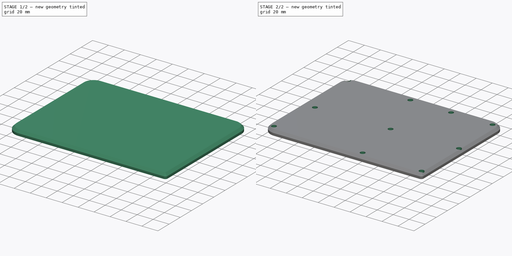
[diagram: build sequence overview — one tinted view per stage of 2, left to right]
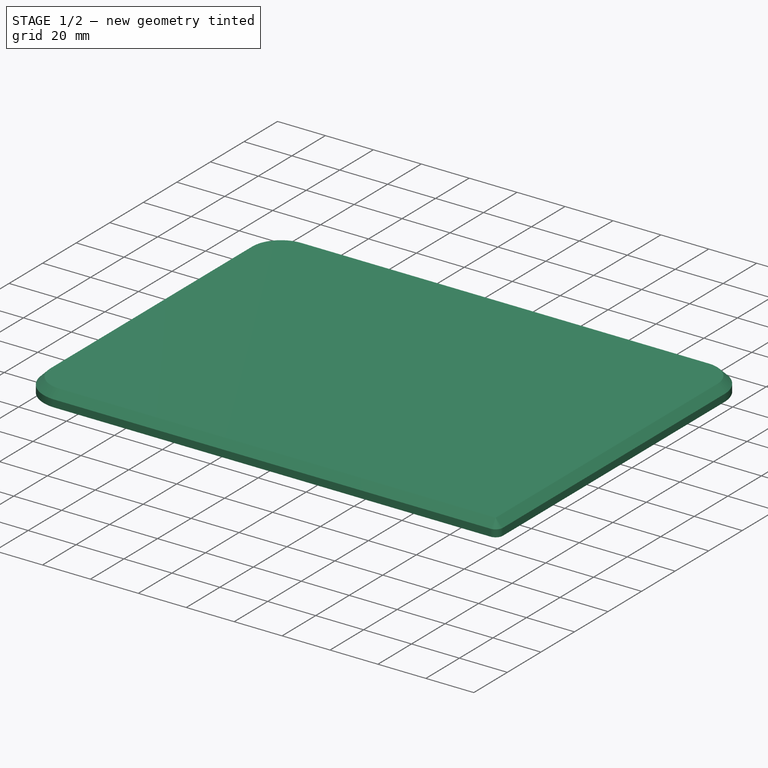
[diagram: stage 1 of 2 — iso view after this stage's code; geometry added in this stage tinted green]
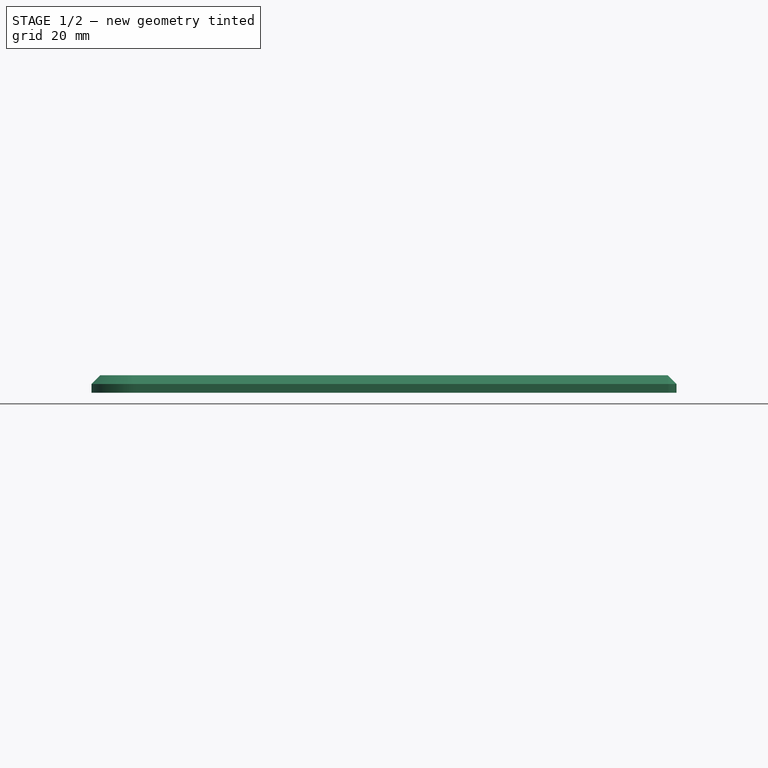
[diagram: stage 1 of 2 — front view after this stage's code; geometry added in this stage tinted green]
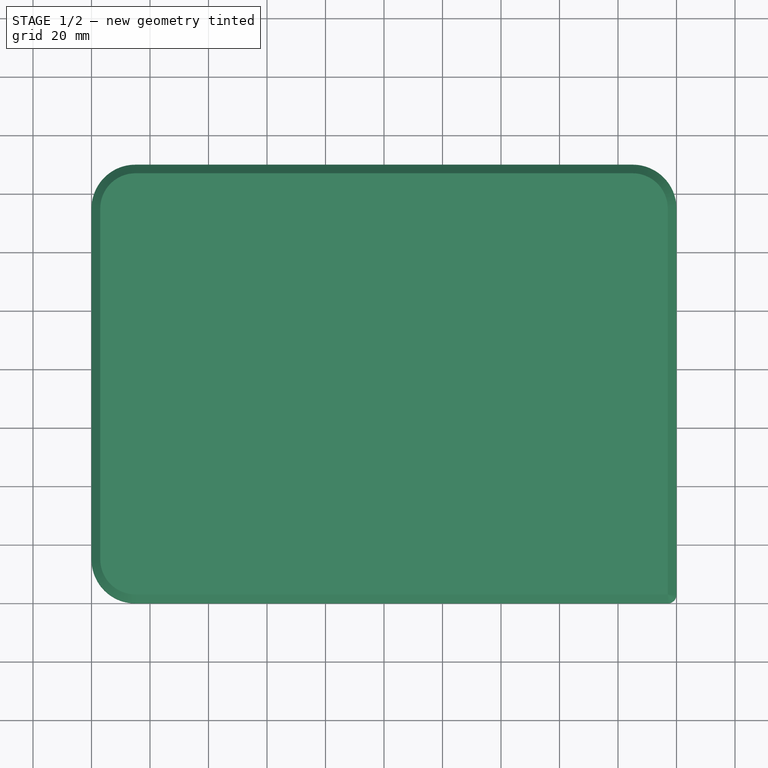
[diagram: stage 1 of 2 — top view after this stage's code; geometry added in this stage tinted green]
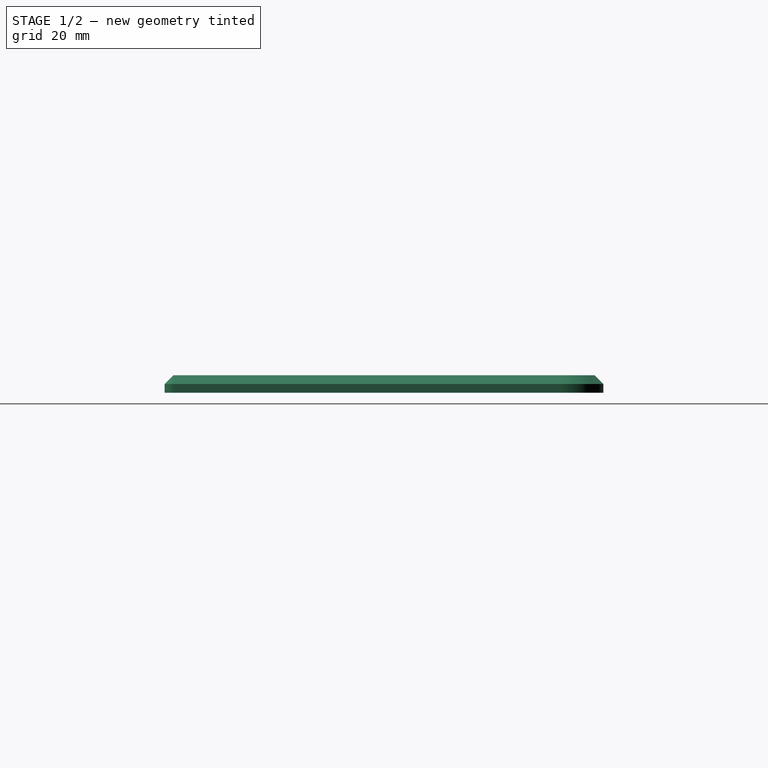
[diagram: stage 1 of 2 — right view after this stage's code; geometry added in this stage tinted green]
FCSTD DOCUMENT  (FreeCAD 0.19R23578 (Git))
Label: Side
License: All rights reserved
LicenseURL: http://en.wikipedia.org/wiki/All_rights_reserved
objects: Sketcher::SketchObject×2, PartDesign::Pad×1, PartDesign::Chamfer×1, PartDesign::Hole×1, PartDesign::Body×1, Part::Feature×1
note: 10 computed .brp shape members not serialized (recipe doc carries the construction recipe); baked Part::Feature solids carry a one-line shape summary decoded from their .brp

FEATURE [Sketcher::SketchObject] Sketch001
  MapMode = 5
  Support = -> [XY_Plane001]
  sketch-geometry (8):
    g0: LineSegment StartX=15 StartY=150 StartZ=0 EndX=185 EndY=150 EndZ=0
    g1: LineSegment StartX=200 StartY=135 StartZ=0 EndX=200 EndY=3 EndZ=0
    g2: LineSegment StartX=197 StartY=0 StartZ=0 EndX=15 EndY=0 EndZ=0
    g3: LineSegment StartX=6.75922e-11 StartY=15 StartZ=0 EndX=6.75922e-11 EndY=135 EndZ=0
    g4: ArcOfCircle CenterX=15 CenterY=135 CenterZ=0 NormalX=0 NormalY=0 NormalZ=1 AngleXU=0 Radius=15 StartAngle=1.5708 EndAngle=3.14159
    g5: ArcOfCircle CenterX=15 CenterY=15 CenterZ=0 NormalX=0 NormalY=0 NormalZ=1 AngleXU=0 Radius=15 StartAngle=3.14159 EndAngle=4.71239
    g6: ArcOfCircle CenterX=197 CenterY=3 CenterZ=0 NormalX=0 NormalY=0 NormalZ=1 AngleXU=0 Radius=3 StartAngle=4.71239 EndAngle=6.28319
    g7: ArcOfCircle CenterX=185 CenterY=135 CenterZ=0 NormalX=0 NormalY=0 NormalZ=1 AngleXU=0 Radius=15 StartAngle=-9e-16 EndAngle=1.5708
  constraints (20):
    c: Horizontal(g0)
    c: Horizontal(g2)
    c: Vertical(g1)
    c: Vertical(g3)
    c: Tangent(g0,g4) = 1.5708
    c: Tangent(g3,g4) = 1.5708
    c: Tangent(g3,g5) = 1.5708
    c: Tangent(g2,g5) = 1.5708
    c: Tangent(g2,g6) = 1.5708
    c: Tangent(g1,g6) = 1.5708
    c: Tangent(g1,g7) = 1.5708
    c: Tangent(g0,g7) = 1.5708
    c: PointOnObject(g3,g-2)
    c: Radius(g4) = 15
    c: Radius(g7) = 15
    c: Radius(g5) = 15
    c: Radius(g6) = 3
    c: DistanceY(g2,g0) = 150
    c: DistanceX(g3,g1) = 200
    c: PointOnObject(g2,g-1)
FEATURE [PartDesign::Pad] Pad
  Direction = (1,1,1)
  Length = 6
  Length2 = 100
  Profile = -> Sketch001
  Type = 0
FEATURE [PartDesign::Chamfer] Chamfer
  Angle = 45
  Base = -> Pad [Edge4]
  BaseFeature = -> Pad
  ChamferType = 0
  FlipDirection = false
  Size = 3
  Size2 = 1
  SupportTransform = false
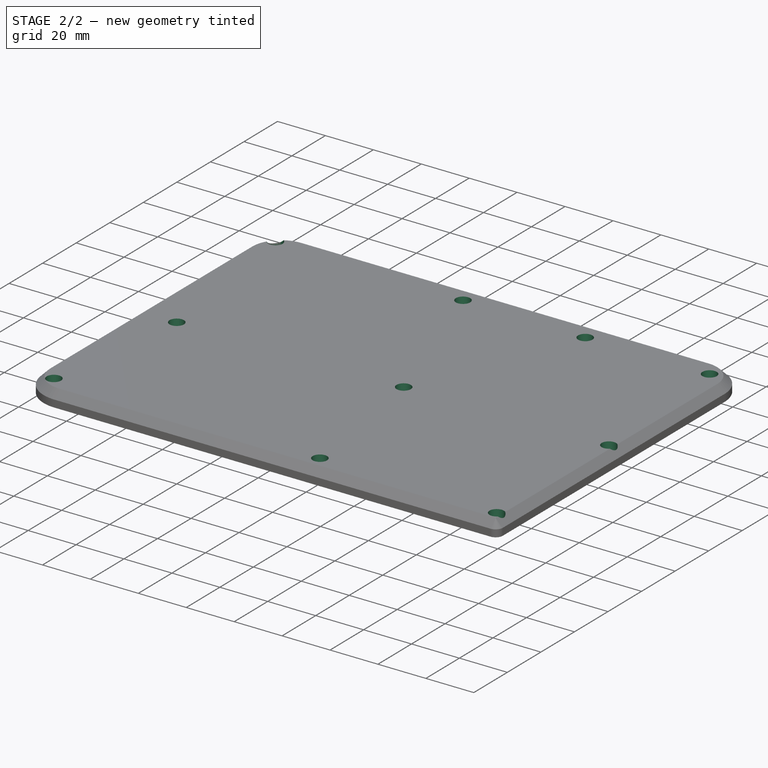
[diagram: stage 2 of 2 — iso view after this stage's code; geometry added in this stage tinted green]
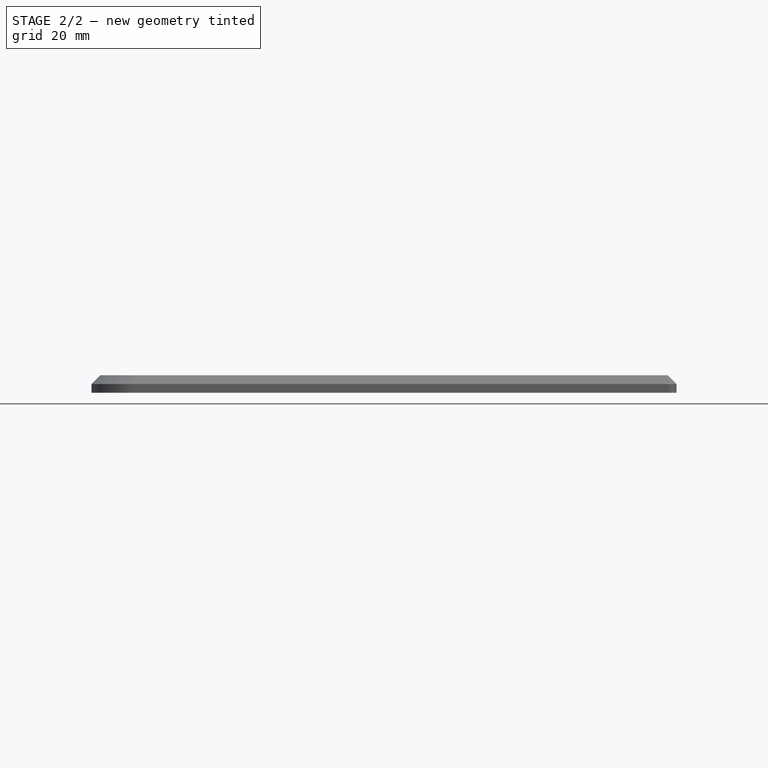
[diagram: stage 2 of 2 — front view after this stage's code; geometry added in this stage tinted green]
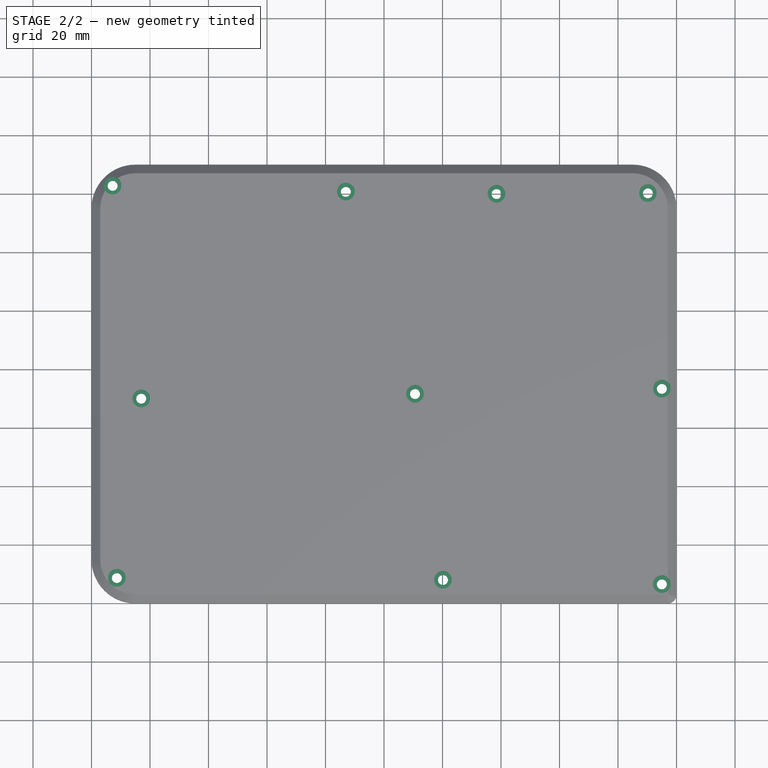
[diagram: stage 2 of 2 — top view after this stage's code; geometry added in this stage tinted green]
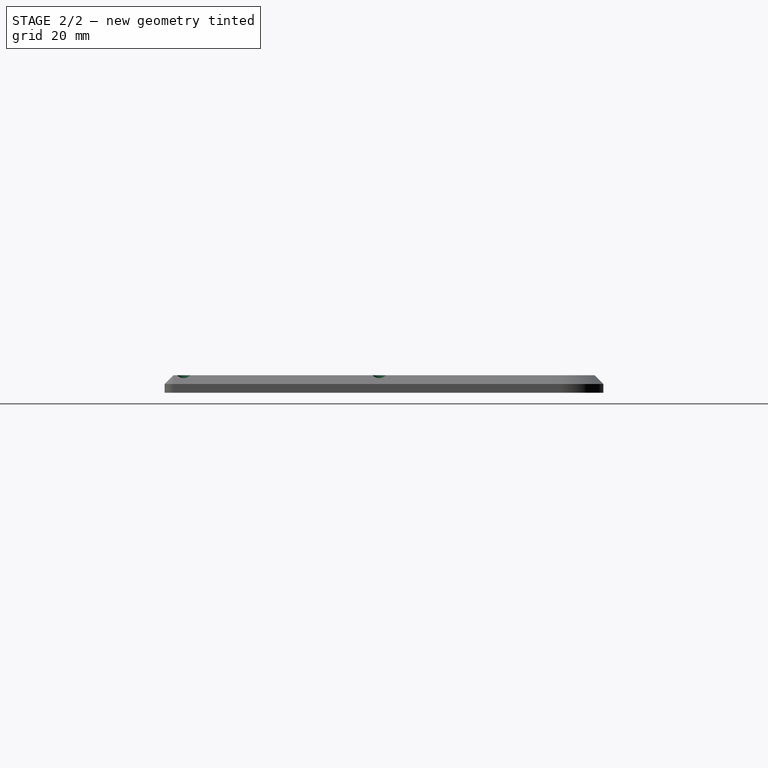
[diagram: stage 2 of 2 — right view after this stage's code; geometry added in this stage tinted green]
FEATURE [Sketcher::SketchObject] Sketch002
  ExternalGeometry = -> [Chamfer]
  MapMode = 5
  Placement = pos=(0,0,6) rot=(0,0,1;0rad)
  Support = -> [Chamfer]
  sketch-geometry (10):
    g0: Circle CenterX=8.6612 CenterY=8.6612 CenterZ=0 NormalX=0 NormalY=0 NormalZ=1 AngleXU=0 Radius=2
    g1: Circle CenterX=120.168 CenterY=8.0062 CenterZ=0 NormalX=0 NormalY=0 NormalZ=1 AngleXU=0 Radius=2
    g2: Circle CenterX=195 CenterY=6.5 CenterZ=0 NormalX=0 NormalY=0 NormalZ=1 AngleXU=0 Radius=2
    g3: Circle CenterX=195 CenterY=73.3647 CenterZ=0 NormalX=0 NormalY=0 NormalZ=1 AngleXU=0 Radius=2
    g4: Circle CenterX=17 CenterY=70 CenterZ=0 NormalX=0 NormalY=0 NormalZ=1 AngleXU=0 Radius=2
    g5: Circle CenterX=110.606 CenterY=71.5958 CenterZ=0 NormalX=0 NormalY=0 NormalZ=1 AngleXU=0 Radius=2
    g6: Circle CenterX=86.9545 CenterY=140.727 CenterZ=0 NormalX=0 NormalY=0 NormalZ=1 AngleXU=0 Radius=2
    g7: Circle CenterX=138.481 CenterY=139.988 CenterZ=0 NormalX=0 NormalY=0 NormalZ=1 AngleXU=0 Radius=2
    g8: Circle CenterX=190.229 CenterY=140.229 CenterZ=0 NormalX=0 NormalY=0 NormalZ=1 AngleXU=0 Radius=2
    g9: Circle CenterX=7.2218 CenterY=142.778 CenterZ=0 NormalX=0 NormalY=0 NormalZ=1 AngleXU=0 Radius=2
  constraints (30):
    c: Diameter(g9) = 4
    c: Equal(g9,g4)
    c: Equal(g9,g0)
    c: Equal(g9,g1)
    c: Equal(g9,g5)
    c: Equal(g9,g3)
    c: Equal(g9,g2)
    c: Equal(g9,g8)
    c: Equal(g9,g7)
    c: Equal(g9,g6)
    c: DistanceX(g-1,g0) = 8.6612
    c: DistanceY(g-1,g0) = 8.6612
    c: DistanceX(g-1,g1) = 120.168
    c: DistanceY(g-1,g1) = 8.0062
    c: DistanceX(g-1,g2) = 195
    c: DistanceY(g-1,g2) = 6.5
    c: DistanceX(g-1,g4) = 17
    c: DistanceY(g-1,g4) = 70
    c: DistanceX(g-1,g5) = 110.606
    c: DistanceY(g-1,g5) = 71.5958
    c: DistanceX(g-1,g3) = 195
    c: DistanceY(g-1,g3) = 73.3647
    c: DistanceX(g-1,g6) = 86.9545
    c: DistanceY(g-1,g6) = 140.727
    c: DistanceX(g-1,g7) = 138.481
    c: DistanceY(g-1,g7) = 139.988
    c: DistanceX(g-1,g8) = 190.229
    c: DistanceY(g-1,g8) = 140.229
    c: DistanceX(g-4,g9) = 7.2218
    c: DistanceY(g9,g-3) = 7.2218
FEATURE [PartDesign::Hole] Hole001
  BaseFeature = -> Chamfer
  Depth = 25
  DepthType = 1
  Diameter = 3.4
  DrillPoint = 1
  DrillPointAngle = 118
  HoleCutCountersinkAngle = 90
  HoleCutDepth = 3.4
  HoleCutDiameter = 6
  HoleCutType = 11
  ModelActualThread = false
  Profile = -> Sketch002
  Tapered = false
  TaperedAngle = 90
  ThreadAngle = 0
  ThreadClass = 0
  ThreadCutOffInner = 0
  ThreadCutOffOuter = 0
  ThreadDirection = 0
  ThreadFit = 0
  ThreadPitch = 0
  ThreadSize = 9
  ThreadType = 1
  Threaded = false
FEATURE [PartDesign::Body] Body001  label="Speaker_Side"
  Group = -> [Sketch001,Pad,Chamfer,Sketch002,Hole001]
  Origin = -> Origin001
  Tip = -> Hole001
FEATURE [Part::Feature] Part__Mirroring001  label="Speaker_Side (Mirror #1)001"
  shape: bbox 200 x 150 x 6 mm, 48 faces (baked)
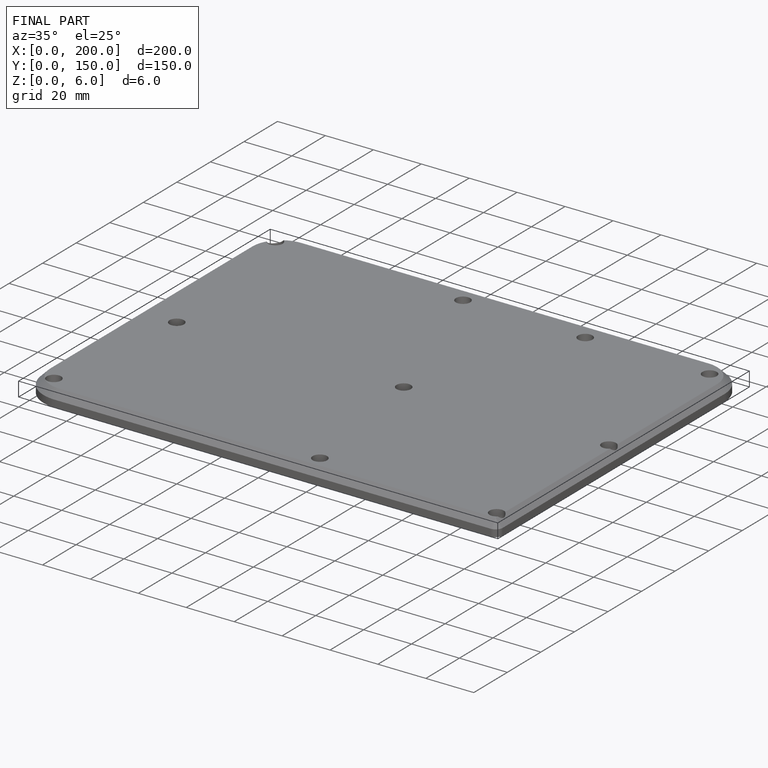
[diagram: finished part — iso view with bounding-box wireframe]
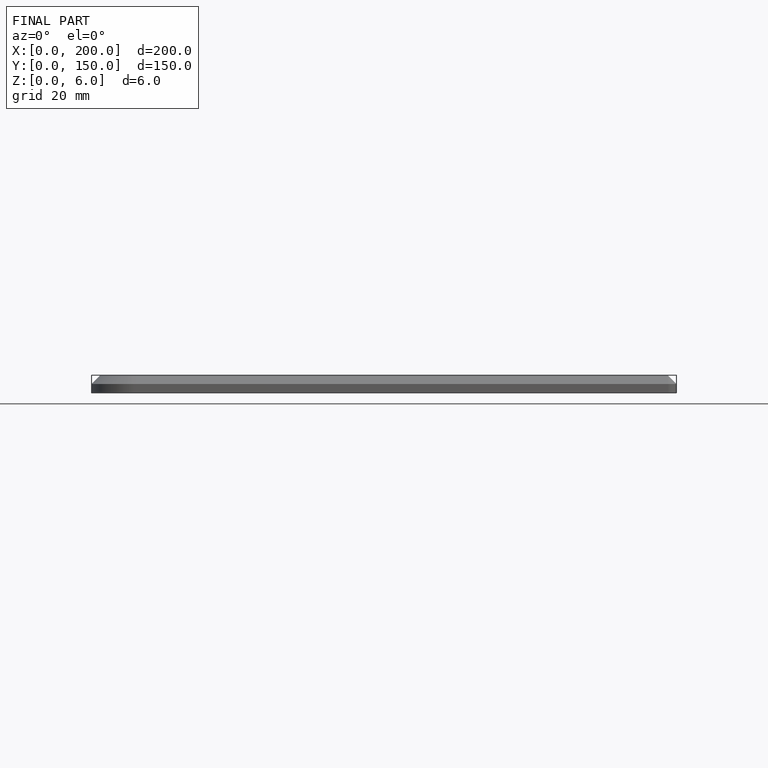
[diagram: finished part — front view with bounding-box wireframe]
